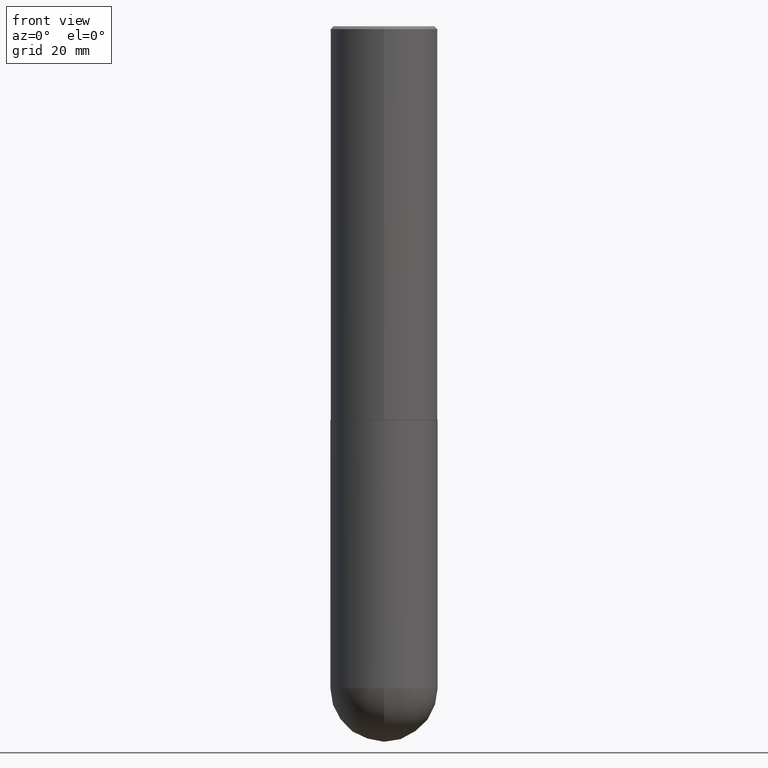
[diagram: clean part render]
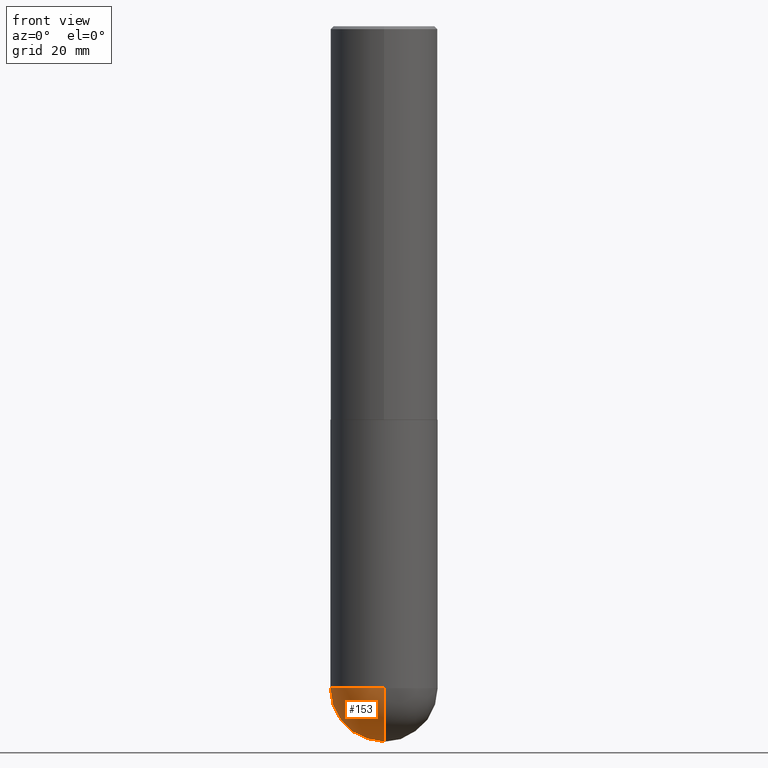
[diagram: same view with one face highlighted and labeled with its STEP entity id]
A machine part, front view. The second image highlights one B-rep face of the part: STEP entity #153.
In plain terms, the highlighted spherical surface has radius 9.525 mm.
Its self-contained STEP definition (entity closure, byte-faithful):
#3 = CARTESIAN_POINT ( 'NONE',  ( 1.131029322860625676E-28, -1.614810119214955014E-14, -4.625000000000000000 ) ) ;
#8 = CIRCLE ( 'NONE', #312, 0.3750000000000003886 ) ;
#16 = AXIS2_PLACEMENT_3D ( 'NONE', #3, #136, #168 ) ;
#27 = SPHERICAL_SURFACE ( 'NONE', #152, 0.3750000000000003886 ) ;
#43 = DIRECTION ( 'NONE',  ( -7.105427357600999492E-15, -1.000000000000000000, 0.000000000000000000 ) ) ;
#60 = EDGE_CURVE ( 'NONE', #354, #137, #140, .T. ) ;
#61 = CARTESIAN_POINT ( 'NONE',  ( -0.3750000000000001110, -1.021030217788372352E-14, -4.625000000000000000 ) ) ;
#64 = DIRECTION ( 'NONE',  ( -2.445468806185136597E-29, 3.491481338843145583E-15, 1.000000000000000000 ) ) ;
#71 = VERTEX_POINT ( 'NONE', #61 ) ;
#72 = ORIENTED_EDGE ( 'NONE', *, *, #145, .F. ) ;
#96 = CIRCLE ( 'NONE', #125, 0.3750000000000001110 ) ;
#100 = CARTESIAN_POINT ( 'NONE',  ( -2.664535259100265651E-15, -0.3750000000000165978, -4.624999999999999112 ) ) ;
#101 = DIRECTION ( 'NONE',  ( -1.000000000000000000, 7.105427357601001070E-15, -4.926315508542082329E-29 ) ) ;
#102 = ORIENTED_EDGE ( 'NONE', *, *, #164, .T. ) ;
#121 = DIRECTION ( 'NONE',  ( 6.982962677686265922E-15, 1.000000000000000000, 0.000000000000000000 ) ) ;
#125 = AXIS2_PLACEMENT_3D ( 'NONE', #246, #64, #216 ) ;
#129 = CARTESIAN_POINT ( 'NONE',  ( 1.191225862093391378E-28, -1.790862693487176734E-14, -5.000000000000000000 ) ) ;
#136 = DIRECTION ( 'NONE',  ( -2.445468806185136597E-29, 3.491481338843145583E-15, 1.000000000000000000 ) ) ;
#137 = VERTEX_POINT ( 'NONE', #382 ) ;
#140 = CIRCLE ( 'NONE', #170, 0.3750000000000003886 ) ;
#143 = EDGE_LOOP ( 'NONE', ( #384, #102, #346, #72 ) ) ;
#145 = EDGE_CURVE ( 'NONE', #137, #71, #96, .T. ) ;
#152 = AXIS2_PLACEMENT_3D ( 'NONE', #376, #383, #196 ) ;
#153 = ADVANCED_FACE ( 'NONE', ( #248 ), #27, .T. ) ;
#164 = EDGE_CURVE ( 'NONE', #354, #362, #8, .T. ) ;
#168 = DIRECTION ( 'NONE',  ( 1.000000000000000000, -6.982962677686270655E-15, 0.000000000000000000 ) ) ;
#170 = AXIS2_PLACEMENT_3D ( 'NONE', #404, #207, #121 ) ;
#193 = EDGE_CURVE ( 'NONE', #71, #362, #275, .T. ) ;
#196 = DIRECTION ( 'NONE',  ( 6.982962677686266711E-15, 1.000000000000000000, -2.913971193241878005E-15 ) ) ;
#207 = DIRECTION ( 'NONE',  ( 1.000000000000000000, -6.982962677686265922E-15, 4.883557194083112340E-29 ) ) ;
#216 = DIRECTION ( 'NONE',  ( 1.000000000000000000, -6.982962677686270655E-15, 0.000000000000000000 ) ) ;
#246 = CARTESIAN_POINT ( 'NONE',  ( 1.131029322860625676E-28, -1.614810119214955014E-14, -4.625000000000000000 ) ) ;
#248 = FACE_OUTER_BOUND ( 'NONE', #143, .T. ) ;
#275 = CIRCLE ( 'NONE', #16, 0.3750000000000001110 ) ;
#312 = AXIS2_PLACEMENT_3D ( 'NONE', #323, #101, #43 ) ;
#323 = CARTESIAN_POINT ( 'NONE',  ( 1.097917345069237163E-28, -1.662228356028959886E-14, -4.625000000000000000 ) ) ;
#346 = ORIENTED_EDGE ( 'NONE', *, *, #193, .F. ) ;
#354 = VERTEX_POINT ( 'NONE', #129 ) ;
#362 = VERTEX_POINT ( 'NONE', #100 ) ;
#376 = CARTESIAN_POINT ( 'NONE',  ( 1.097917345069237163E-28, -1.662228356028959886E-14, -4.625000000000000000 ) ) ;
#382 = CARTESIAN_POINT ( 'NONE',  ( 2.618611004132463218E-15, 0.3749999999999838463, -4.625000000000000888 ) ) ;
#383 = DIRECTION ( 'NONE',  ( -1.000000000000000000, 6.982962677686266711E-15, -4.883557194083113462E-29 ) ) ;
#384 = ORIENTED_EDGE ( 'NONE', *, *, #60, .F. ) ;
#404 = CARTESIAN_POINT ( 'NONE',  ( 1.097917345069237163E-28, -1.662228356028959886E-14, -4.625000000000000000 ) ) ;